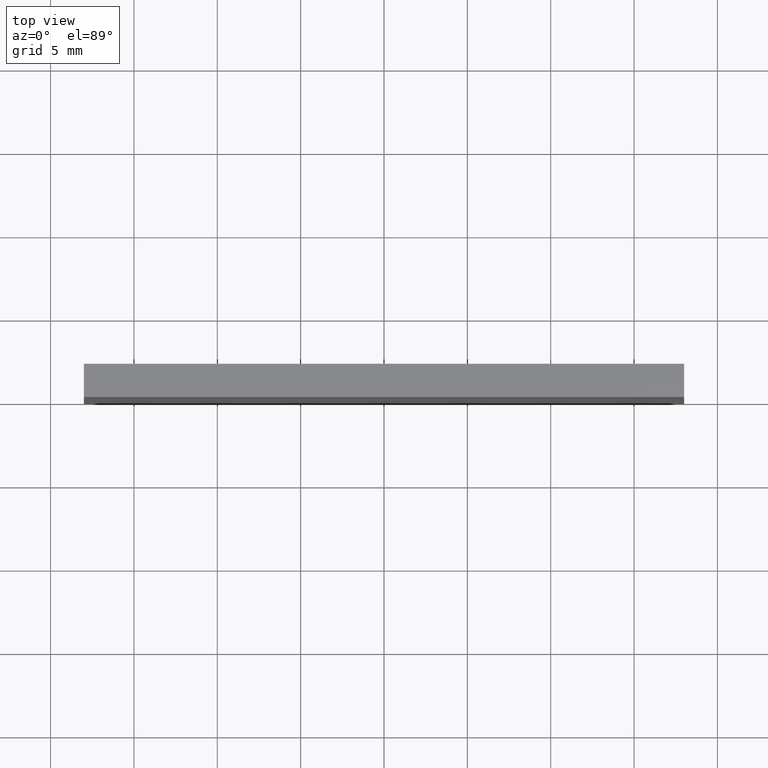
[diagram: clean part render]
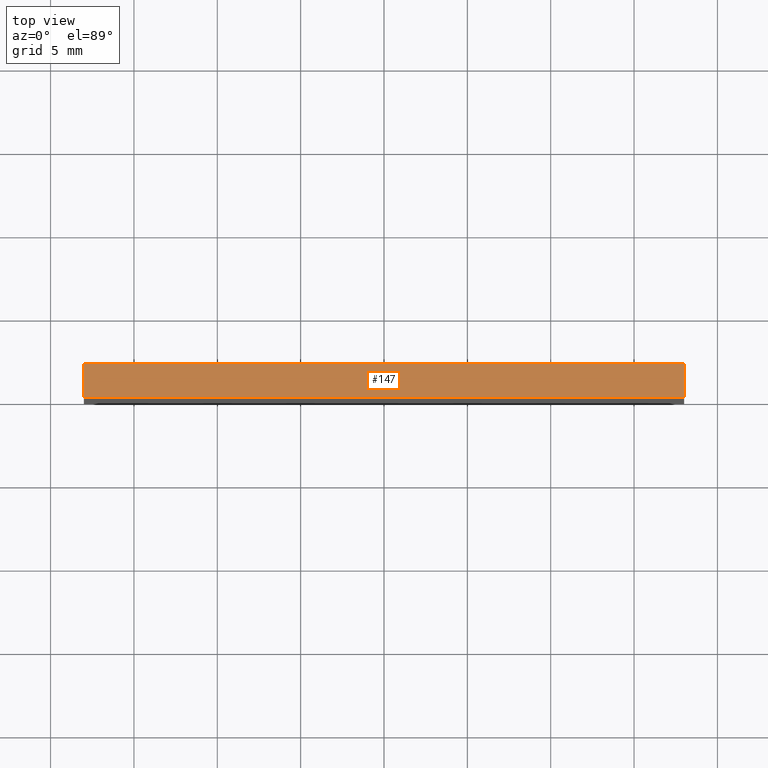
[diagram: same view with one face highlighted and labeled with its STEP entity id]
A machine part, top view. The second image highlights one B-rep face of the part: STEP entity #147.
In plain terms, the highlighted planar face has unit normal (0, 0, -1).
Its self-contained STEP definition (entity closure, byte-faithful):
#2 = VECTOR ( 'NONE', #142, 1000.000000000000000 ) ;
#11 = PLANE ( 'NONE',  #83 ) ;
#13 = CARTESIAN_POINT ( 'NONE',  ( -18.00000000000000400, 2.000000000000000000, 12.50000000000000200 ) ) ;
#15 = EDGE_LOOP ( 'NONE', ( #98, #82, #75, #50 ) ) ;
#21 = VERTEX_POINT ( 'NONE', #117 ) ;
#23 = DIRECTION ( 'NONE',  ( -0.0000000000000000000, -1.000000000000000000, -0.0000000000000000000 ) ) ;
#24 = LINE ( 'NONE', #72, #107 ) ;
#38 = EDGE_CURVE ( 'NONE', #21, #152, #195, .T. ) ;
#50 = ORIENTED_EDGE ( 'NONE', *, *, #67, .T. ) ;
#67 = EDGE_CURVE ( 'NONE', #21, #171, #181, .T. ) ;
#72 = CARTESIAN_POINT ( 'NONE',  ( 18.00000000000000400, 2.000000000000000000, 12.50000000000000200 ) ) ;
#75 = ORIENTED_EDGE ( 'NONE', *, *, #38, .F. ) ;
#82 = ORIENTED_EDGE ( 'NONE', *, *, #158, .F. ) ;
#83 = AXIS2_PLACEMENT_3D ( 'NONE', #180, #197, #118 ) ;
#84 = CARTESIAN_POINT ( 'NONE',  ( -18.00000000000000400, 0.0000000000000000000, 12.50000000000000200 ) ) ;
#86 = DIRECTION ( 'NONE',  ( -0.0000000000000000000, -1.000000000000000000, -0.0000000000000000000 ) ) ;
#98 = ORIENTED_EDGE ( 'NONE', *, *, #125, .T. ) ;
#101 = CARTESIAN_POINT ( 'NONE',  ( -18.00000000000000400, 0.0000000000000000000, 12.50000000000000200 ) ) ;
#102 = DIRECTION ( 'NONE',  ( 1.000000000000000000, 0.0000000000000000000, 0.0000000000000000000 ) ) ;
#107 = VECTOR ( 'NONE', #86, 1000.000000000000000 ) ;
#117 = CARTESIAN_POINT ( 'NONE',  ( -18.00000000000000400, 2.000000000000000000, 12.50000000000000200 ) ) ;
#118 = DIRECTION ( 'NONE',  ( -1.000000000000000000, 0.0000000000000000000, -0.0000000000000000000 ) ) ;
#124 = VERTEX_POINT ( 'NONE', #159 ) ;
#125 = EDGE_CURVE ( 'NONE', #171, #124, #130, .T. ) ;
#130 = LINE ( 'NONE', #84, #2 ) ;
#142 = DIRECTION ( 'NONE',  ( 1.000000000000000000, 0.0000000000000000000, 0.0000000000000000000 ) ) ;
#144 = FACE_OUTER_BOUND ( 'NONE', #15, .T. ) ;
#147 = ADVANCED_FACE ( 'NONE', ( #144 ), #11, .F. ) ;
#152 = VERTEX_POINT ( 'NONE', #179 ) ;
#158 = EDGE_CURVE ( 'NONE', #152, #124, #24, .T. ) ;
#159 = CARTESIAN_POINT ( 'NONE',  ( 18.00000000000000400, 0.0000000000000000000, 12.50000000000000200 ) ) ;
#161 = CARTESIAN_POINT ( 'NONE',  ( -18.00000000000000400, 2.000000000000000000, 12.50000000000000200 ) ) ;
#171 = VERTEX_POINT ( 'NONE', #101 ) ;
#172 = VECTOR ( 'NONE', #23, 1000.000000000000000 ) ;
#179 = CARTESIAN_POINT ( 'NONE',  ( 18.00000000000000400, 2.000000000000000000, 12.50000000000000200 ) ) ;
#180 = CARTESIAN_POINT ( 'NONE',  ( -18.00000000000000400, 2.000000000000000000, 12.50000000000000200 ) ) ;
#181 = LINE ( 'NONE', #161, #172 ) ;
#195 = LINE ( 'NONE', #13, #202 ) ;
#197 = DIRECTION ( 'NONE',  ( 0.0000000000000000000, 0.0000000000000000000, -1.000000000000000000 ) ) ;
#202 = VECTOR ( 'NONE', #102, 1000.000000000000000 ) ;